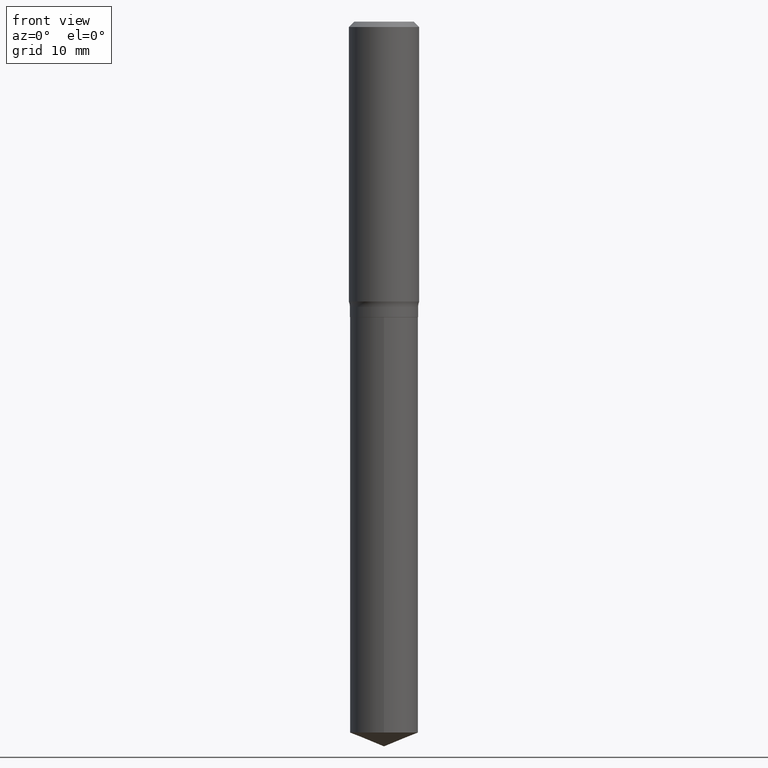
[diagram: clean part render]
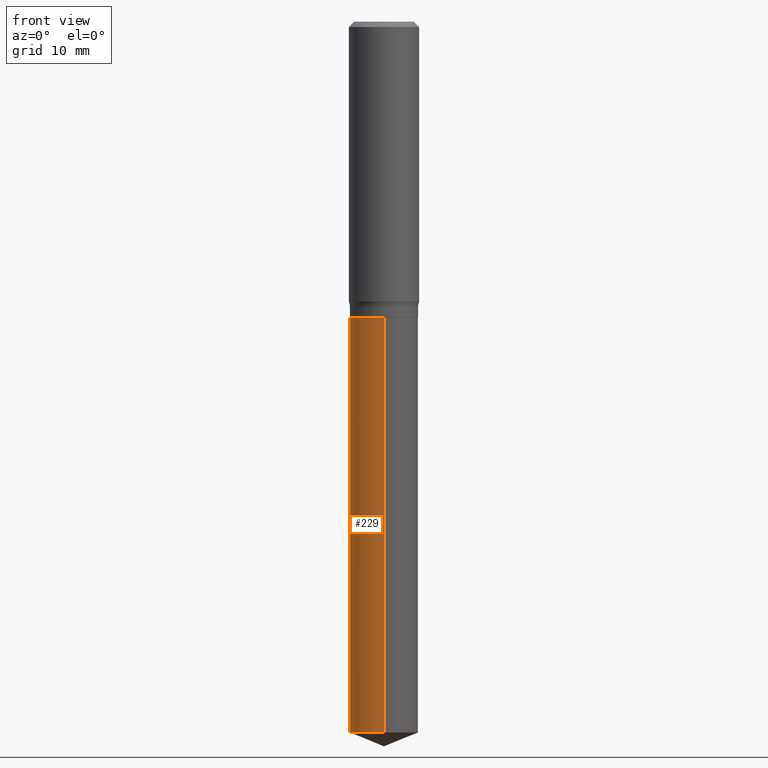
[diagram: same view with one face highlighted and labeled with its STEP entity id]
A machine part, front view. The second image highlights one B-rep face of the part: STEP entity #229.
In plain terms, the highlighted cylindrical surface (edge-blend (fillet) strip) has radius 4.8501 mm, axis along (-0, 0, 1).
Its self-contained STEP definition (entity closure, byte-faithful):
#1 = DIRECTION ( 'NONE',  ( -2.445507172700810819E-29, 3.491426395809013811E-15, 1.000000000000000000 ) ) ;
#2 = DIRECTION ( 'NONE',  ( -6.982962677686265922E-15, -1.000000000000000000, 2.861322852751257324E-15 ) ) ;
#9 = ORIENTED_EDGE ( 'NONE', *, *, #376, .T. ) ;
#10 = EDGE_LOOP ( 'NONE', ( #156, #9, #113, #239 ) ) ;
#37 = FACE_OUTER_BOUND ( 'NONE', #10, .T. ) ;
#46 = EDGE_CURVE ( 'NONE', #163, #402, #287, .T. ) ;
#49 = CARTESIAN_POINT ( 'NONE',  ( -1.333396723304151920E-15, -0.1909500000000057818, -1.653399999999999093 ) ) ;
#56 = CARTESIAN_POINT ( 'NONE',  ( 9.727800187207764451E-29, -1.388846549377898755E-14, -3.977851192176776962 ) ) ;
#113 = ORIENTED_EDGE ( 'NONE', *, *, #266, .T. ) ;
#141 = AXIS2_PLACEMENT_3D ( 'NONE', #56, #318, #396 ) ;
#144 = DIRECTION ( 'NONE',  ( -2.445507172700810819E-29, 3.491426395809013417E-15, 1.000000000000000000 ) ) ;
#156 = ORIENTED_EDGE ( 'NONE', *, *, #46, .F. ) ;
#163 = VERTEX_POINT ( 'NONE', #397 ) ;
#169 = VECTOR ( 'NONE', #362, 39.37007874015748143 ) ;
#189 = VECTOR ( 'NONE', #144, 39.37007874015748143 ) ;
#208 = CARTESIAN_POINT ( 'NONE',  ( 1.356781353934008988E-15, 0.1909499999999942355, -1.653400000000000203 ) ) ;
#214 = AXIS2_PLACEMENT_3D ( 'NONE', #270, #1, #333 ) ;
#220 = LINE ( 'NONE', #484, #189 ) ;
#227 = VERTEX_POINT ( 'NONE', #300 ) ;
#229 = ADVANCED_FACE ( 'NONE', ( #37 ), #338, .T. ) ;
#239 = ORIENTED_EDGE ( 'NONE', *, *, #339, .F. ) ;
#266 = EDGE_CURVE ( 'NONE', #227, #422, #220, .T. ) ;
#270 = CARTESIAN_POINT ( 'NONE',  ( 4.043338124146503856E-29, -5.772815245643255193E-15, -1.653399999999999537 ) ) ;
#287 = LINE ( 'NONE', #290, #169 ) ;
#290 = CARTESIAN_POINT ( 'NONE',  ( 1.356781353933951598E-15, 0.1909499999999942355, -1.653400000000000203 ) ) ;
#300 = CARTESIAN_POINT ( 'NONE',  ( -1.333396723304095319E-15, -0.1909500000000139142, -3.977851192176776518 ) ) ;
#301 = CIRCLE ( 'NONE', #141, 0.1909500000000000086 ) ;
#318 = DIRECTION ( 'NONE',  ( -2.445507172700810819E-29, 3.491426395809013811E-15, 1.000000000000000000 ) ) ;
#333 = DIRECTION ( 'NONE',  ( -6.982962677686265922E-15, -1.000000000000000000, 2.861322852751257324E-15 ) ) ;
#338 = CYLINDRICAL_SURFACE ( 'NONE', #214, 0.1909500000000000086 ) ;
#339 = EDGE_CURVE ( 'NONE', #402, #422, #428, .T. ) ;
#342 = DIRECTION ( 'NONE',  ( -2.445507172700810819E-29, 3.491426395809013811E-15, 1.000000000000000000 ) ) ;
#362 = DIRECTION ( 'NONE',  ( -2.445507172700810819E-29, 3.491426395809013417E-15, 1.000000000000000000 ) ) ;
#376 = EDGE_CURVE ( 'NONE', #163, #227, #301, .T. ) ;
#380 = CARTESIAN_POINT ( 'NONE',  ( 4.043338124146503856E-29, -5.772815245643255193E-15, -1.653399999999999537 ) ) ;
#396 = DIRECTION ( 'NONE',  ( -6.982962677686265922E-15, -1.000000000000000000, 2.861322852751257324E-15 ) ) ;
#397 = CARTESIAN_POINT ( 'NONE',  ( 1.356781353934008396E-15, 0.1909499999999861031, -3.977851192176777406 ) ) ;
#402 = VERTEX_POINT ( 'NONE', #208 ) ;
#422 = VERTEX_POINT ( 'NONE', #49 ) ;
#428 = CIRCLE ( 'NONE', #462, 0.1909500000000000086 ) ;
#462 = AXIS2_PLACEMENT_3D ( 'NONE', #380, #342, #2 ) ;
#484 = CARTESIAN_POINT ( 'NONE',  ( -1.333396723304151920E-15, -0.1909500000000057818, -1.653399999999999093 ) ) ;